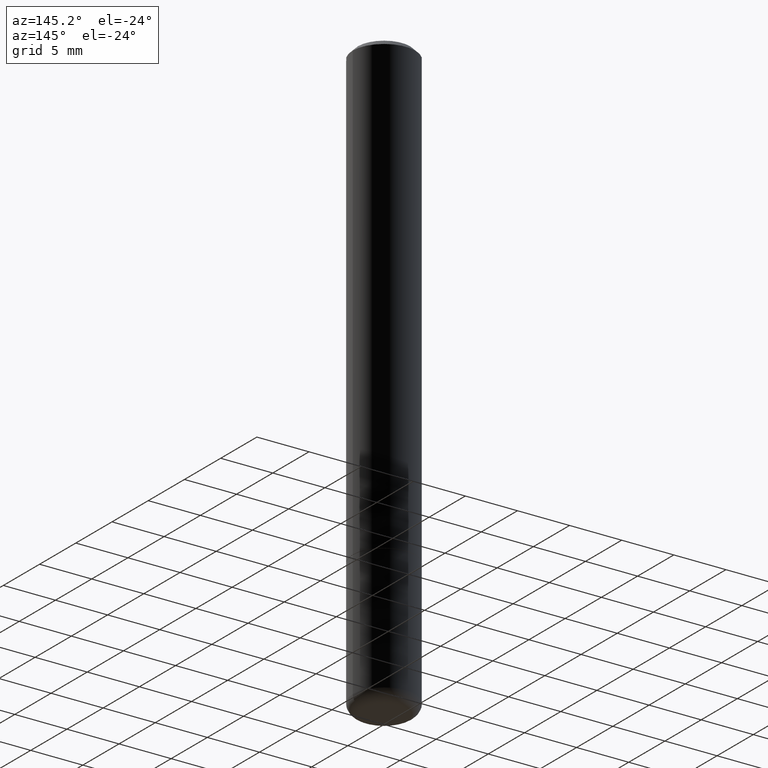
[diagram: clean part render]
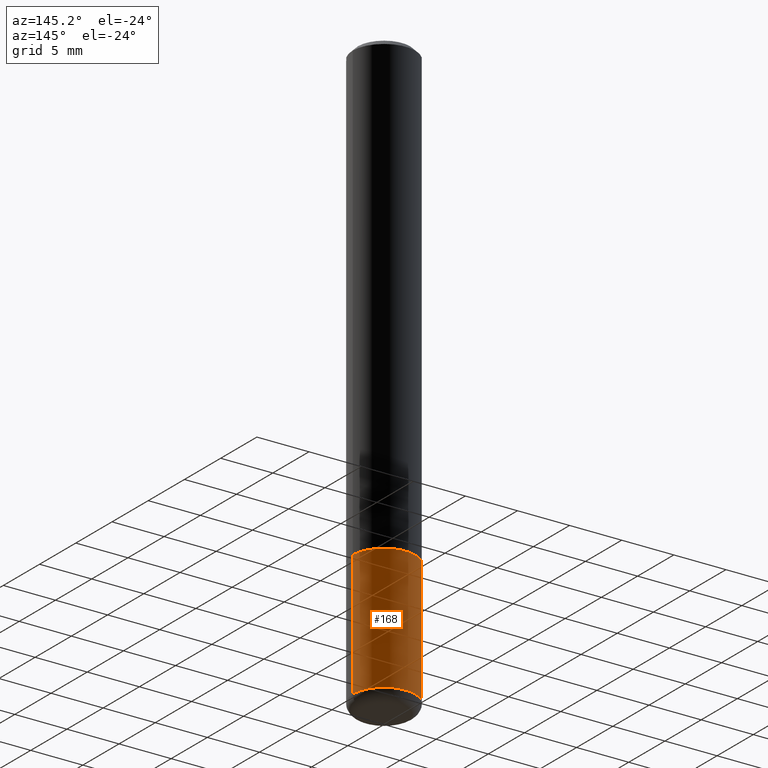
[diagram: same view with one face highlighted and labeled with its STEP entity id]
A machine part, auxiliary view. The second image highlights one B-rep face of the part: STEP entity #168.
In plain terms, the highlighted cylindrical surface (partial cylindrical patch) has radius 2.9997 mm, axis along (-0, 0, 1).
Its self-contained STEP definition (entity closure, byte-faithful):
#5 = LINE ( 'NONE', #175, #372 ) ;
#7 = VERTEX_POINT ( 'NONE', #319 ) ;
#10 = DIRECTION ( 'NONE',  ( -2.445468806185136597E-29, 3.491481338843145583E-15, 1.000000000000000000 ) ) ;
#28 = VECTOR ( 'NONE', #394, 39.37007874015748143 ) ;
#36 = CARTESIAN_POINT ( 'NONE',  ( -0.1180999999999999966, -6.033830044580054299E-15, -1.732299999999999951 ) ) ;
#47 = CARTESIAN_POINT ( 'NONE',  ( -0.1180999999999998995, -6.858517936814806506E-15, -2.204700000000000326 ) ) ;
#63 = EDGE_CURVE ( 'NONE', #370, #336, #202, .T. ) ;
#90 = CARTESIAN_POINT ( 'NONE',  ( 0.1180999999999998995, -8.522356799982231388E-15, -2.204700000000000326 ) ) ;
#91 = CARTESIAN_POINT ( 'NONE',  ( 5.391525076996371277E-29, -7.697668907747483125E-15, -2.204700000000000326 ) ) ;
#103 = DIRECTION ( 'NONE',  ( 1.000000000000000000, -6.982962677686265133E-15, 0.000000000000000000 ) ) ;
#117 = DIRECTION ( 'NONE',  ( -2.445468806185136597E-29, 3.491481338843145583E-15, 1.000000000000000000 ) ) ;
#118 = EDGE_CURVE ( 'NONE', #7, #262, #230, .T. ) ;
#138 = CARTESIAN_POINT ( 'NONE',  ( 0.000000000000000000, 0.000000000000000000, 0.000000000000000000 ) ) ;
#153 = ORIENTED_EDGE ( 'NONE', *, *, #118, .F. ) ;
#167 = LINE ( 'NONE', #327, #28 ) ;
#168 = ADVANCED_FACE ( 'NONE', ( #173 ), #229, .T. ) ;
#170 = EDGE_CURVE ( 'NONE', #370, #7, #167, .T. ) ;
#173 = FACE_OUTER_BOUND ( 'NONE', #289, .T. ) ;
#175 = CARTESIAN_POINT ( 'NONE',  ( -0.1180999999999999966, 8.391509709326782957E-16, -5.809262341591043784E-30 ) ) ;
#192 = DIRECTION ( 'NONE',  ( 1.000000000000000000, -6.982962677686266711E-15, 4.876176775795936353E-29 ) ) ;
#202 = CIRCLE ( 'NONE', #255, 0.1180999999999999966 ) ;
#216 = ORIENTED_EDGE ( 'NONE', *, *, #63, .T. ) ;
#229 = CYLINDRICAL_SURFACE ( 'NONE', #313, 0.1180999999999999966 ) ;
#230 = CIRCLE ( 'NONE', #359, 0.1180999999999999966 ) ;
#251 = DIRECTION ( 'NONE',  ( 1.000000000000000000, -6.982962677686265133E-15, 0.000000000000000000 ) ) ;
#255 = AXIS2_PLACEMENT_3D ( 'NONE', #91, #117, #251 ) ;
#260 = DIRECTION ( 'NONE',  ( -2.445468806185136877E-29, 3.491481338843145188E-15, 1.000000000000000000 ) ) ;
#262 = VERTEX_POINT ( 'NONE', #36 ) ;
#267 = DIRECTION ( 'NONE',  ( -2.445468806185136597E-29, 3.491481338843145583E-15, 1.000000000000000000 ) ) ;
#289 = EDGE_LOOP ( 'NONE', ( #216, #416, #153, #409 ) ) ;
#301 = CARTESIAN_POINT ( 'NONE',  ( 4.236285612954512392E-29, -6.048293123277981078E-15, -1.732299999999999951 ) ) ;
#311 = EDGE_CURVE ( 'NONE', #336, #262, #5, .T. ) ;
#313 = AXIS2_PLACEMENT_3D ( 'NONE', #138, #267, #192 ) ;
#319 = CARTESIAN_POINT ( 'NONE',  ( 0.1180999999999999966, -6.872981015512729341E-15, -1.732299999999999951 ) ) ;
#327 = CARTESIAN_POINT ( 'NONE',  ( 0.1180999999999999966, -8.246878922347480654E-16, 5.758764772215000440E-30 ) ) ;
#336 = VERTEX_POINT ( 'NONE', #47 ) ;
#359 = AXIS2_PLACEMENT_3D ( 'NONE', #301, #10, #103 ) ;
#370 = VERTEX_POINT ( 'NONE', #90 ) ;
#372 = VECTOR ( 'NONE', #260, 39.37007874015748143 ) ;
#394 = DIRECTION ( 'NONE',  ( -2.445468806185136877E-29, 3.491481338843145188E-15, 1.000000000000000000 ) ) ;
#409 = ORIENTED_EDGE ( 'NONE', *, *, #170, .F. ) ;
#416 = ORIENTED_EDGE ( 'NONE', *, *, #311, .T. ) ;